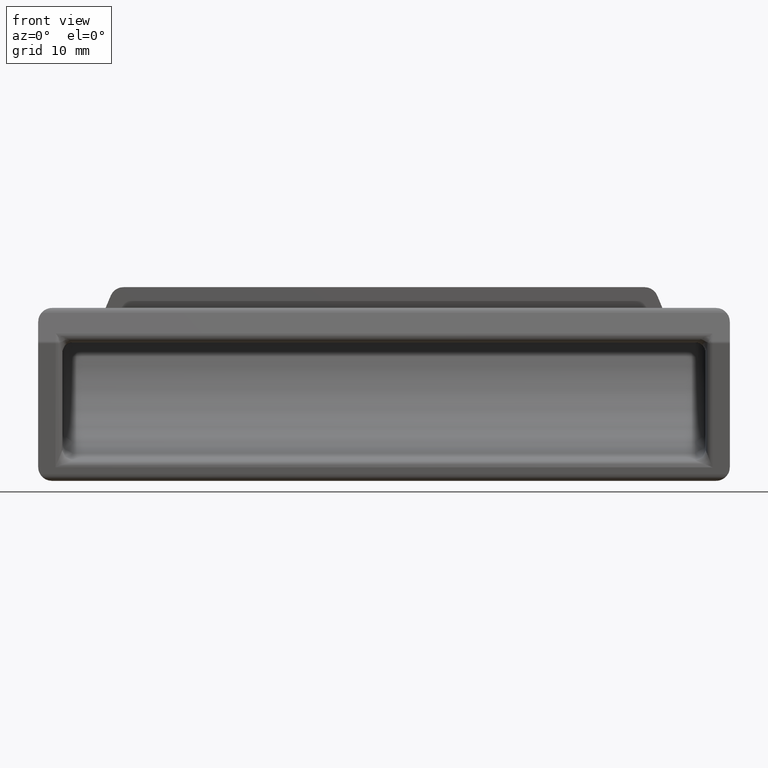
[diagram: clean part render]
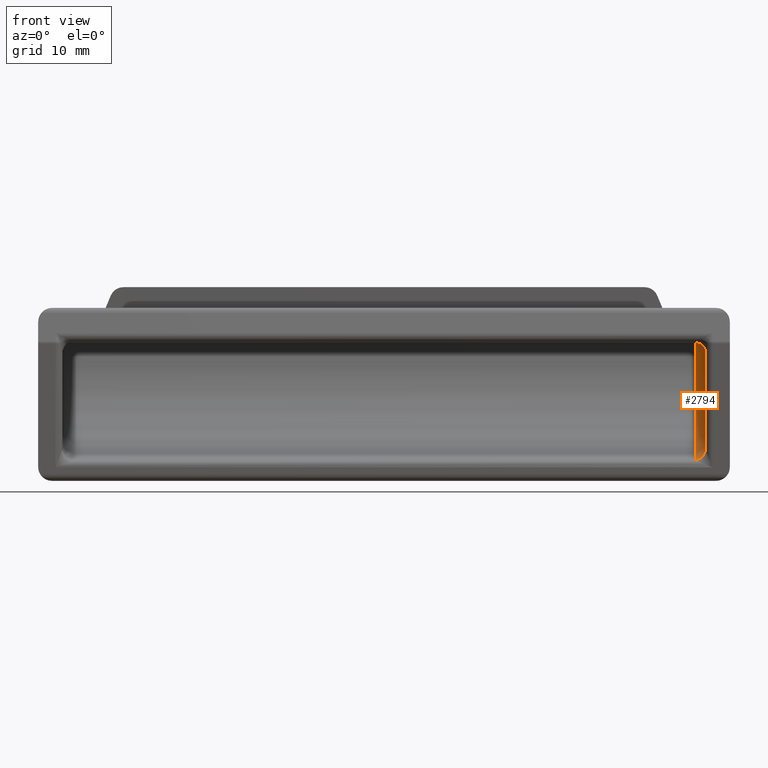
[diagram: same view with one face highlighted and labeled with its STEP entity id]
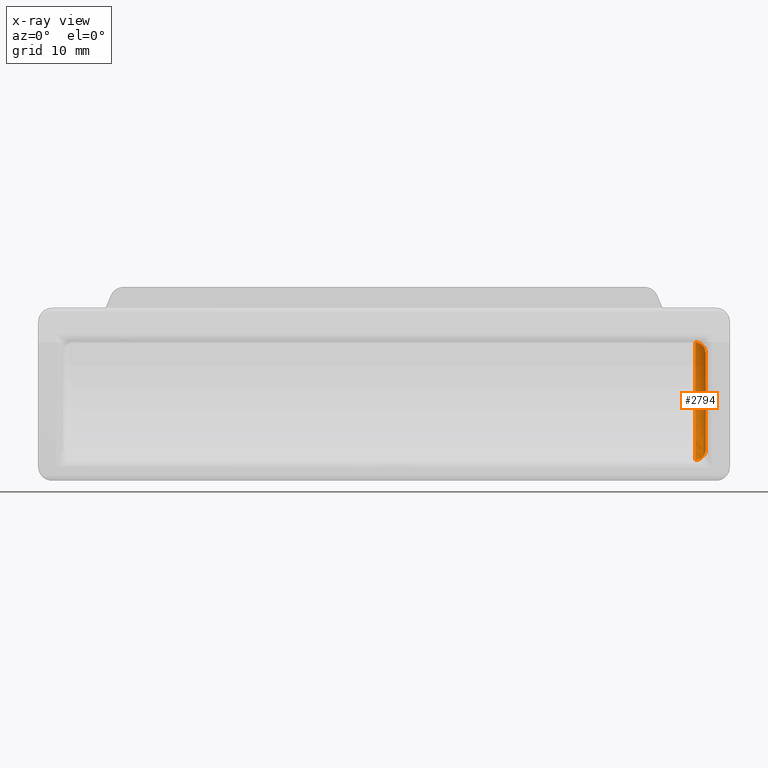
[diagram: x-ray of the same camera — body ghosted, the highlighted face saturated]
A machine part, front view. The second image highlights one B-rep face of the part: STEP entity #2794.
The next image is the same camera in x-ray: the body ghosted, the highlighted face saturated — about 0% of this face is hidden behind the body in this view.
In plain terms, the highlighted toroidal blend (fillet) surface has major radius 17.1789 mm and minor (blend) radius 1.5 mm.
Its self-contained STEP definition (entity closure, byte-faithful):
#52 = VERTEX_POINT ( 'NONE', #1085 ) ;
#129 = EDGE_CURVE ( 'NONE', #1808, #52, #1793, .T. ) ;
#251 = CARTESIAN_POINT ( 'NONE',  ( 46.50000000000000000, -0.1487164131805303900, -7.750000000000000000 ) ) ;
#264 = DIRECTION ( 'NONE',  ( -1.000000000000000000, 0.0000000000000000000, 0.0000000000000000000 ) ) ;
#335 = CARTESIAN_POINT ( 'NONE',  ( 46.50000000000000000, 13.35090205235646000, 6.250000000000000000 ) ) ;
#523 = B_SPLINE_CURVE_WITH_KNOTS ( 'NONE', 3,
 ( #3220, #3230, #3196, #3177, #3165, #3151, #3135, #3113, #3104, #3082, #2959, #2916, #2868, #2856 ),
 .UNSPECIFIED., .F., .F.,
 ( 4, 2, 2, 2, 2, 2, 4 ),
 ( -1.729865997340308600E-005, 0.0005749281984091933100, 0.001167155056791789600, 0.001463268485983087700, 0.001759381915174386300, 0.002055495344365684500, 0.002351608773556982600 ),
 .UNSPECIFIED. ) ;
#597 = CARTESIAN_POINT ( 'NONE',  ( 46.50000000000000000, -3.593294092900099800, 9.080023843475249400 ) ) ;
#711 = VERTEX_POINT ( 'NONE', #3153 ) ;
#781 = DIRECTION ( 'NONE',  ( 0.0000000000000000000, 0.0000000000000000000, 1.000000000000000000 ) ) ;
#802 = EDGE_LOOP ( 'NONE', ( #2196, #1321, #1253, #2419 ) ) ;
#840 = DIRECTION ( 'NONE',  ( 0.0000000000000000000, 0.0000000000000000000, 1.000000000000000000 ) ) ;
#945 = DIRECTION ( 'NONE',  ( 0.0000000000000000000, -1.787761369363998500E-015, 1.000000000000000000 ) ) ;
#953 = DIRECTION ( 'NONE',  ( 1.000000000000000000, -0.0000000000000000000, -0.0000000000000000000 ) ) ;
#964 = CARTESIAN_POINT ( 'NONE',  ( 45.00000000000000000, -3.593294092900099800, 9.080023843475249400 ) ) ;
#1002 = VERTEX_POINT ( 'NONE', #251 ) ;
#1065 = EDGE_CURVE ( 'NONE', #711, #52, #1632, .T. ) ;
#1079 = CARTESIAN_POINT ( 'NONE',  ( 46.28325082075559000, 14.27044744224518300, 7.049172577715058500 ) ) ;
#1085 = CARTESIAN_POINT ( 'NONE',  ( 45.00000000000000000, 15.03820002636550000, 7.750000000000000000 ) ) ;
#1253 = ORIENTED_EDGE ( 'NONE', *, *, #1472, .F. ) ;
#1321 = ORIENTED_EDGE ( 'NONE', *, *, #1065, .F. ) ;
#1339 = CARTESIAN_POINT ( 'NONE',  ( 46.04608144644061700, 14.59480673406042300, 7.341385855394115400 ) ) ;
#1374 = CARTESIAN_POINT ( 'NONE',  ( 45.89105629987554400, 14.74339063833848100, 7.477342491780992100 ) ) ;
#1472 = EDGE_CURVE ( 'NONE', #1002, #711, #523, .T. ) ;
#1549 = CARTESIAN_POINT ( 'NONE',  ( 45.25246610686877300, 15.03820002636550000, 7.750000000000000000 ) ) ;
#1559 = AXIS2_PLACEMENT_3D ( 'NONE', #597, #2311, #840 ) ;
#1605 = CARTESIAN_POINT ( 'NONE',  ( 46.50000000000001400, 13.54015416166530800, 6.410292830608131700 ) ) ;
#1632 = CIRCLE ( 'NONE', #3085, 18.67890619229195400 ) ;
#1675 = CIRCLE ( 'NONE', #1559, 17.17890619229195400 ) ;
#1776 = CARTESIAN_POINT ( 'NONE',  ( 45.49288158867551600, 14.96792418121953900, 7.684370475582849000 ) ) ;
#1785 = CARTESIAN_POINT ( 'NONE',  ( 45.00000000000000000, 15.03820002636550000, 7.750000000000000000 ) ) ;
#1793 = B_SPLINE_CURVE_WITH_KNOTS ( 'NONE', 3,
 ( #2617, #1605, #2629, #2025, #1079, #1339, #1374, #1776, #1549, #1785 ),
 .UNSPECIFIED., .F., .F.,
 ( 4, 2, 2, 2, 4 ),
 ( -7.799435159439497800E-006, 0.0007362373373955177100, 0.001480274109950474900, 0.002224310882505432200, 0.002968347655060389300 ),
 .UNSPECIFIED. ) ;
#1797 = AXIS2_PLACEMENT_3D ( 'NONE', #2245, #264, #781 ) ;
#1808 = VERTEX_POINT ( 'NONE', #335 ) ;
#1859 = TOROIDAL_SURFACE ( 'NONE', #1797, 17.17890619229195100, 1.500000000000000000 ) ;
#2006 = EDGE_CURVE ( 'NONE', #1808, #1002, #1675, .T. ) ;
#2025 = CARTESIAN_POINT ( 'NONE',  ( 46.36581829661309200, 14.09458905083914500, 6.892761159422587300 ) ) ;
#2196 = ORIENTED_EDGE ( 'NONE', *, *, #129, .T. ) ;
#2245 = CARTESIAN_POINT ( 'NONE',  ( 45.00000000000000000, -3.593294092900099800, 9.080023843475249400 ) ) ;
#2311 = DIRECTION ( 'NONE',  ( -1.000000000000000000, 0.0000000000000000000, 0.0000000000000000000 ) ) ;
#2419 = ORIENTED_EDGE ( 'NONE', *, *, #2006, .F. ) ;
#2617 = CARTESIAN_POINT ( 'NONE',  ( 46.50000000000000000, 13.35090205235646000, 6.250000000000000000 ) ) ;
#2629 = CARTESIAN_POINT ( 'NONE',  ( 46.47464910890003900, 13.72852369898658700, 6.572508190664556200 ) ) ;
#2794 = ADVANCED_FACE ( 'NONE', ( #3245 ), #1859, .F. ) ;
#2856 = CARTESIAN_POINT ( 'NONE',  ( 45.00000000000000000, 1.776356839400249700E-015, -9.250000000000000000 ) ) ;
#2868 = CARTESIAN_POINT ( 'NONE',  ( 45.09928312583471000, 1.776307499731073300E-015, -9.250000000000003600 ) ) ;
#2916 = CARTESIAN_POINT ( 'NONE',  ( 45.19689474090904500, -0.0009472560082279020300, -9.240240131601572300 ) ) ;
#2959 = CARTESIAN_POINT ( 'NONE',  ( 45.38891328925439000, -0.004662132961145992900, -9.202008829957602400 ) ) ;
#3082 = CARTESIAN_POINT ( 'NONE',  ( 45.48432500384291900, -0.007475709935164233000, -9.173065078673987600 ) ) ;
#3085 = AXIS2_PLACEMENT_3D ( 'NONE', #964, #953, #945 ) ;
#3104 = CARTESIAN_POINT ( 'NONE',  ( 45.66610205430301100, -0.01482680626844464300, -9.097587837857759000 ) ) ;
#3113 = CARTESIAN_POINT ( 'NONE',  ( 45.75229346403350000, -0.01932933839745082400, -9.051413298349510600 ) ) ;
#3135 = CARTESIAN_POINT ( 'NONE',  ( 45.91537263858705800, -0.02999108064725048900, -8.942356893582902100 ) ) ;
#3151 = CARTESIAN_POINT ( 'NONE',  ( 45.99248952799371900, -0.03620222805758050600, -8.878949198447275000 ) ) ;
#3153 = CARTESIAN_POINT ( 'NONE',  ( 45.00000000000000000, 1.776356839400249700E-015, -9.250000000000000000 ) ) ;
#3165 = CARTESIAN_POINT ( 'NONE',  ( 46.19974237385111600, -0.05660381833348860500, -8.671338840923217700 ) ) ;
#3177 = CARTESIAN_POINT ( 'NONE',  ( 46.31119966188178700, -0.07311496565976514900, -8.504156614617082600 ) ) ;
#3196 = CARTESIAN_POINT ( 'NONE',  ( 46.46040226093120400, -0.1089944344800446700, -8.143982219086961300 ) ) ;
#3220 = CARTESIAN_POINT ( 'NONE',  ( 46.50000000000000000, -0.1487164131805303900, -7.750000000000000000 ) ) ;
#3230 = CARTESIAN_POINT ( 'NONE',  ( 46.50000000000000700, -0.1288283754901833600, -7.946407816058696800 ) ) ;
#3245 = FACE_OUTER_BOUND ( 'NONE', #802, .T. ) ;